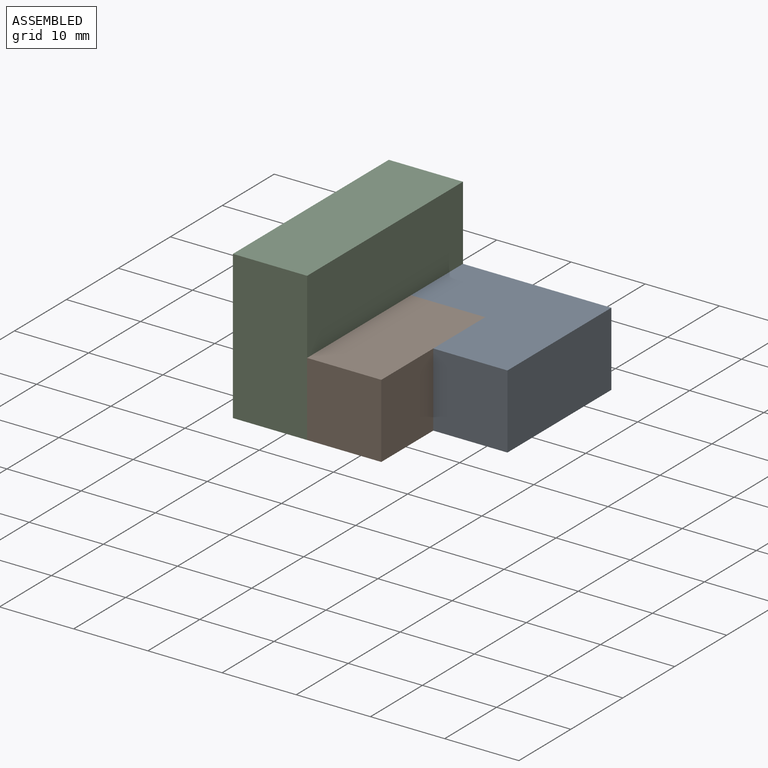
[diagram: assembled view]
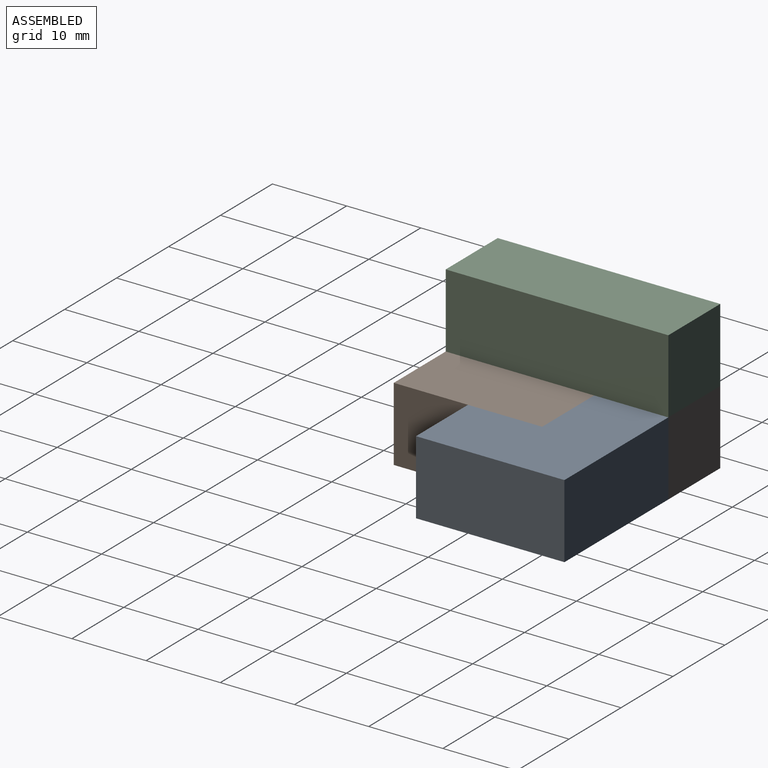
[diagram: assembled view, second angle]
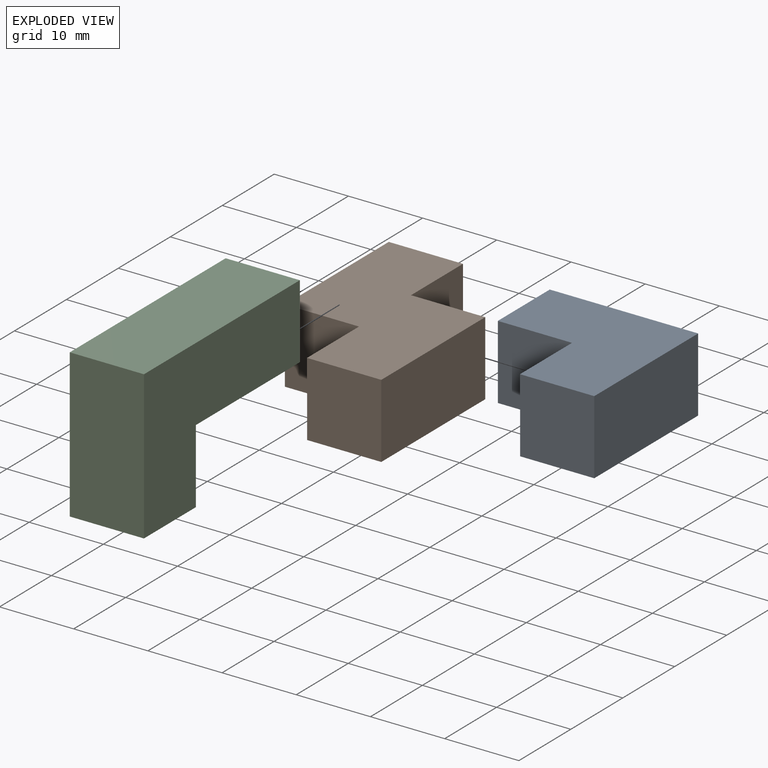
[diagram: exploded view]
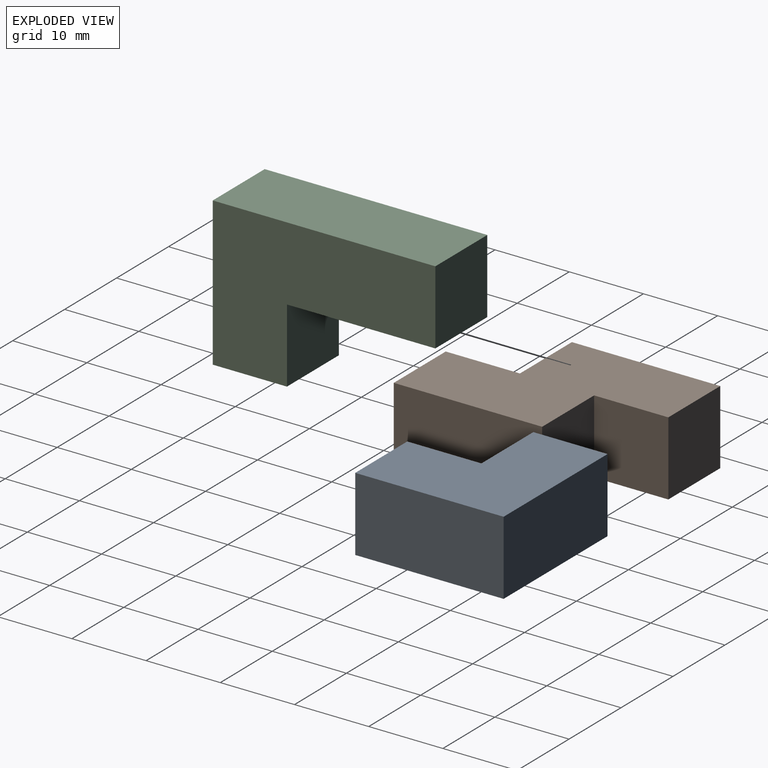
[diagram: exploded view, second angle]
ASSEMBLY  parts=3 mates=2
PART A: 8 faces, bbox 20x20x10 mm
  f0: plane 20x20mm, normal (0,0,1), area 300mm2, adj f1,f3,f4,f5,f6,f7
  f1: plane 10x10mm, normal (-1,0,0), area 100mm2, adj f0,f2,f3,f4
  f2: plane 20x20mm, normal (0,0,-1), area 300mm2, adj f1,f3,f4,f5,f6,f7
  f3: plane 10x10mm, normal (0,-1,0), area 100mm2, adj f0,f1,f2,f6
  f4: plane 20x10mm, normal (0,1,0), area 200mm2, adj f0,f1,f2,f5
  f5: plane 20x10mm, normal (1,0,0), area 200mm2, adj f0,f2,f4,f7
  f6: plane 10x10mm, normal (-1,0,0), area 100mm2, adj f0,f2,f3,f7
  f7: plane 10x10mm, normal (0,-1,0), area 100mm2, adj f0,f2,f5,f6
PART B: 10 faces, bbox 20x30x10 mm
  f0: plane 10x10mm, normal (0,1,0), area 100mm2, adj f2,f3,f4,f8
  f1: plane 10x10mm, normal (-1,0,0), area 100mm2, adj f2,f4,f5,f6
  f2: plane 30x20mm, normal (0,0,-1), area 400mm2, adj f0,f1,f3,f5,f6,f7,f8,f9
  f3: plane 20x10mm, normal (1,0,0), area 200mm2, adj f0,f2,f4,f5
  f4: plane 30x20mm, normal (0,0,1), area 400mm2, adj f0,f1,f3,f5,f6,f7,f8,f9
  f5: plane 10x10mm, normal (0,-1,0), area 100mm2, adj f1,f2,f3,f4
  f6: plane 10x10mm, normal (0,-1,0), area 100mm2, adj f1,f2,f4,f7
  f7: plane 20x10mm, normal (-1,0,0), area 200mm2, adj f2,f4,f6,f9
  f8: plane 10x10mm, normal (1,0,0), area 100mm2, adj f0,f2,f4,f9
  f9: plane 10x10mm, normal (0,1,0), area 100mm2, adj f2,f4,f7,f8
PART C: 8 faces, bbox 10x30x20 mm
  f0: plane 30x10mm, normal (0,0,1), area 300mm2, adj f1,f3,f4,f5
  f1: plane 30x20mm, normal (-1,0,0), area 400mm2, adj f0,f2,f4,f5,f6,f7
  f2: plane 20x10mm, normal (0,0,-1), area 200mm2, adj f1,f3,f5,f6
  f3: plane 30x20mm, normal (1,0,0), area 400mm2, adj f0,f2,f4,f5,f6,f7
  f4: plane 20x10mm, normal (0,-1,0), area 200mm2, adj f0,f1,f3,f7
  f5: plane 10x10mm, normal (0,1,0), area 100mm2, adj f0,f1,f2,f3
  f6: plane 10x10mm, normal (0,1,0), area 100mm2, adj f1,f2,f3,f7
  f7: plane 10x10mm, normal (0,0,-1), area 100mm2, adj f1,f3,f4,f6
PLACE A t=(26.85,3.95,-54.65)mm
PLACE B t=(-16.31,-6.05,1.22)mm
PLACE C t=(-10.1,3.95,-43.3)mm
MATE fastened C.f6 <-> B.f6  axis (0,1,0) through (-31.31,-16.05,6.22)mm
MATE fastened A.f1 <-> B.f8  axis (-1,0,0) through (-26.31,-1.05,6.22)mm
